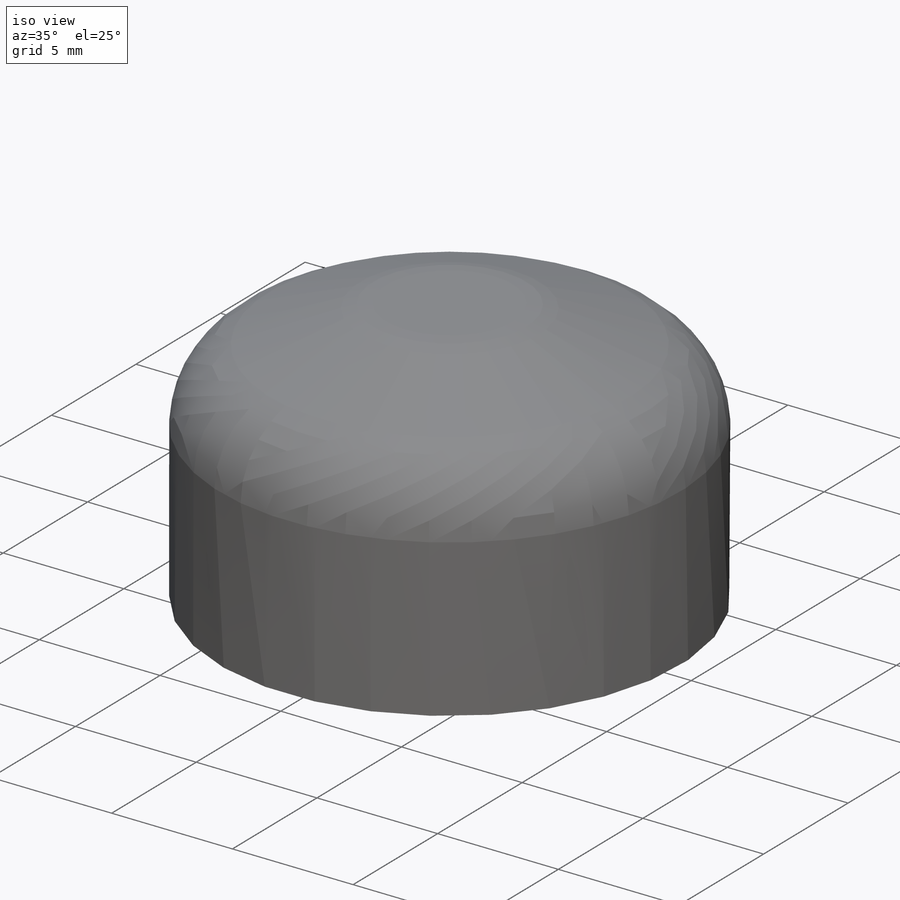
[diagram: iso view]
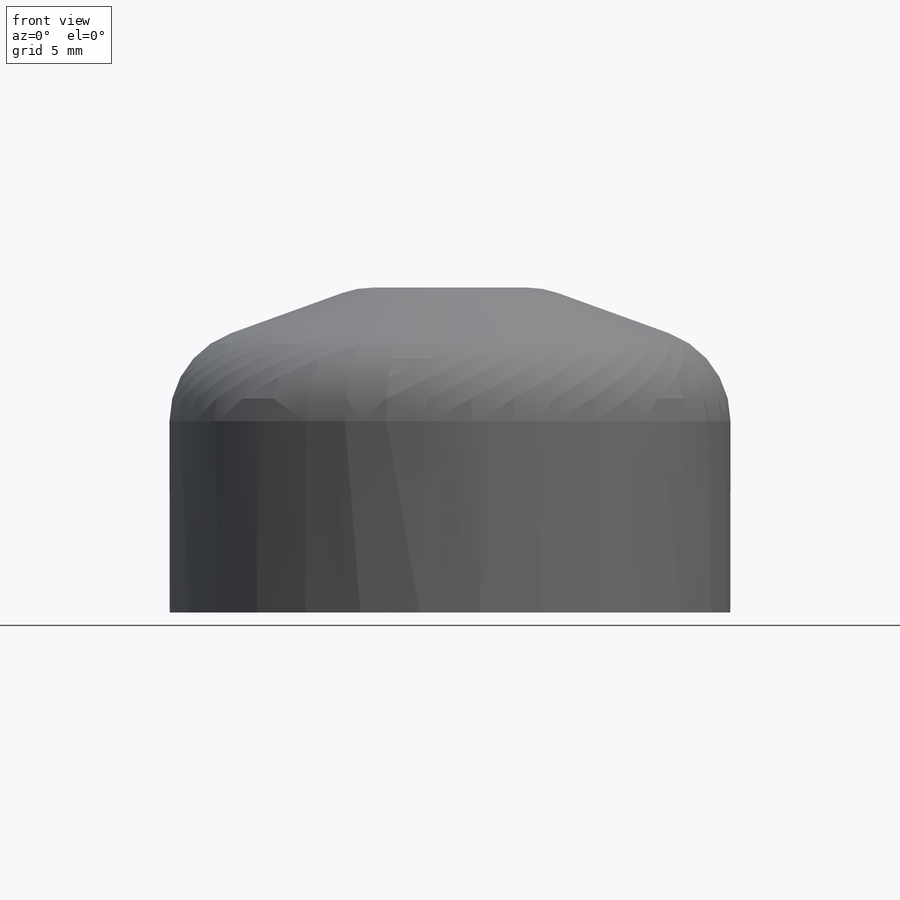
[diagram: front view]
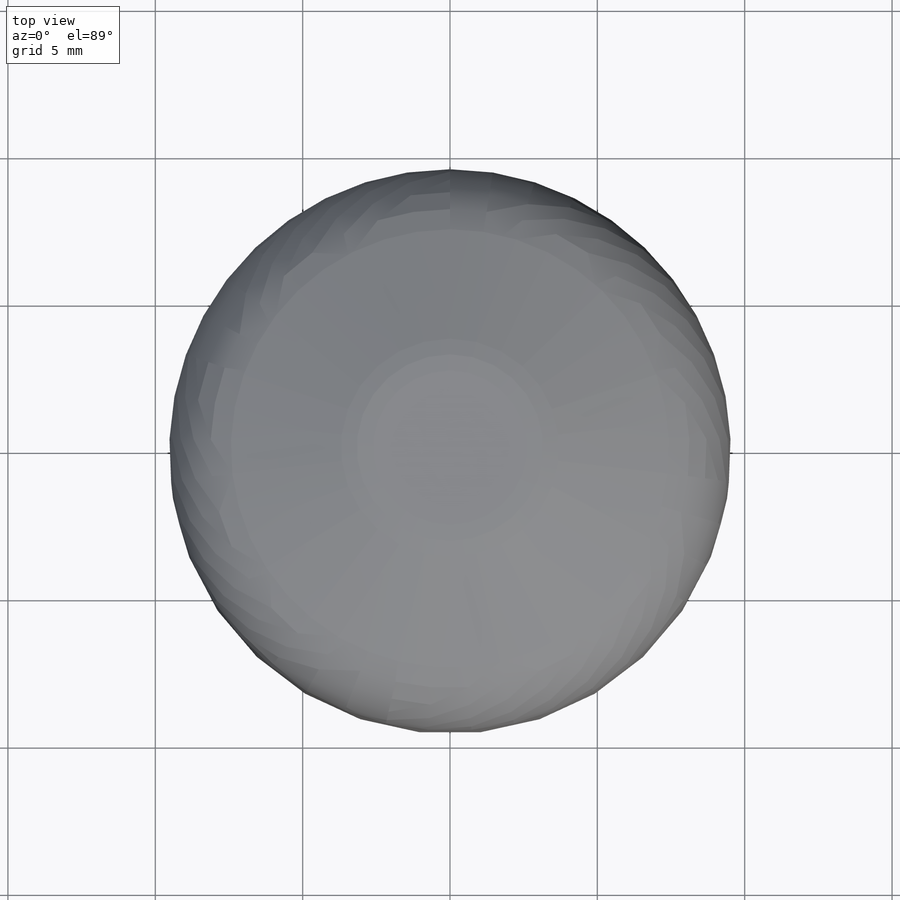
[diagram: top view]
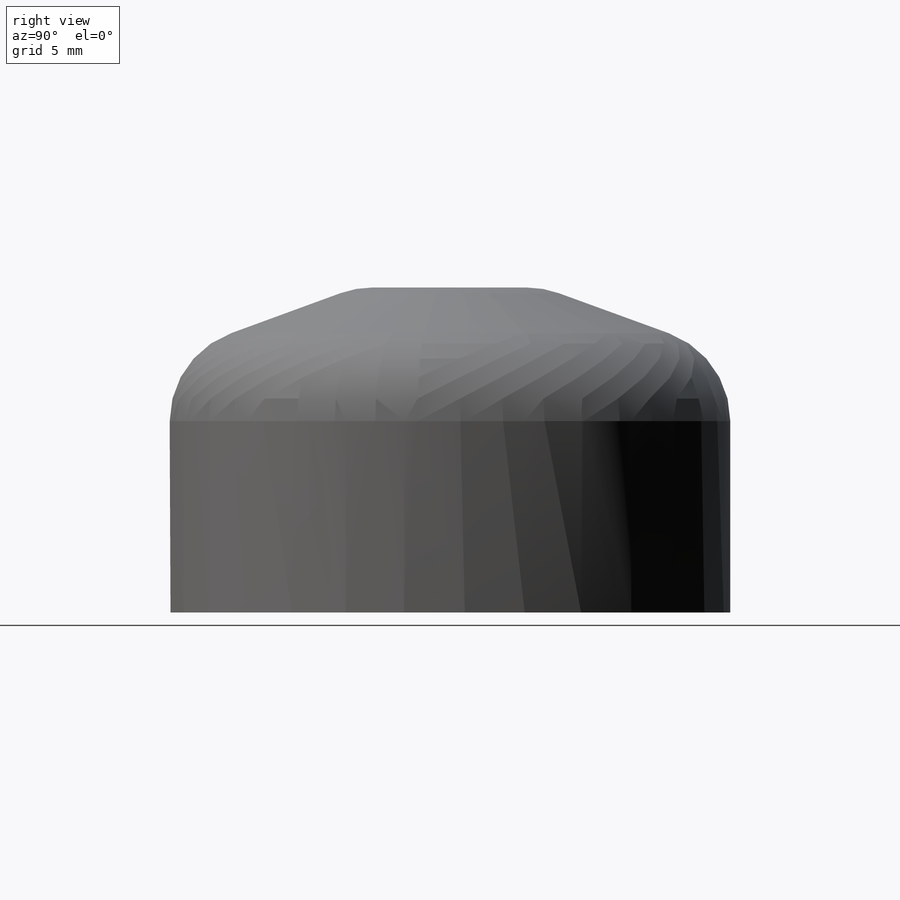
[diagram: right view]
SOLIDWORKS PART (.sldprt)
format: sldprt  version: not decoded by parser v0  size: 243,712 bytes
history: native  units: mm
features: plane x3, sketch x3, material x1, revolve x1, hole x1, thread x1, pattern_circular x1 (+8 scaffold rows collapsed)
feature tree (19):
  scaffold x8  (default folders/planes/origin — collapsed)
  material  "Delrin 2700 NC010, Low Viscosity Acetal Copolymer (SS)"
  plane  "Front-Back Midplane"
  plane  "Horizontal Midplane"
  plane  "Left-Right Midplane"
  sketch  "Sketch1"  dims[c1.D3=3.175mm c1.D5=3.175mm c1.D1=~11.02868mm c1.D2=9.525mm c2.D3=~7.388387mm c3.D3=20.0deg c3.D4=3.175mm]
  revolve  "Revolve1"  Angle=360deg
  hole  "#4-40 Tapped Hole1"  Diameter=2.2606mm Depth=8.509mm
  sketch  "Sketch3"  dims[D1=5.715mm]
  sketch  "Sketch2"  dims[hole-wizard template sketch: 47 standard entries collapsed; hole parameters kept: c15.Tap Drill Depth=8.509mm c15.D3=~14.816244mm c15.Drill Angle=118.0deg]
  thread  "Hole Thread1"  Diameter=6.604mm  [1 undecoded]
  pattern_circular  "CirPattern1"  Count=3 Angle=360deg
decode coverage: 7 of 7 modeling features carry decoded parameters
note: ~ marks probable driven/reference dimensions
note: 1 parameter value undecoded
note: suppression state not decoded; provenance and decode notes live in map.json
